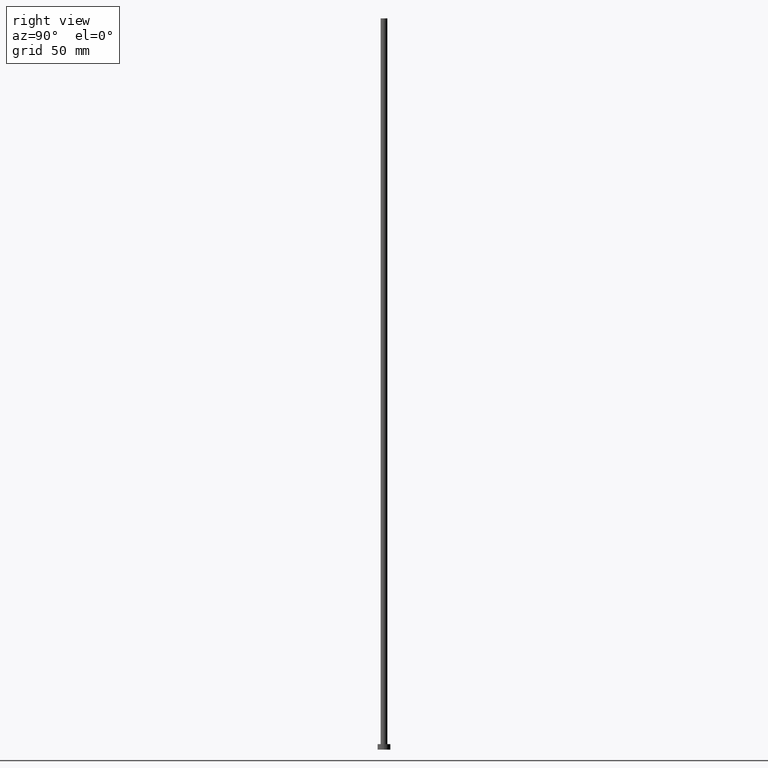
[diagram: clean part render]
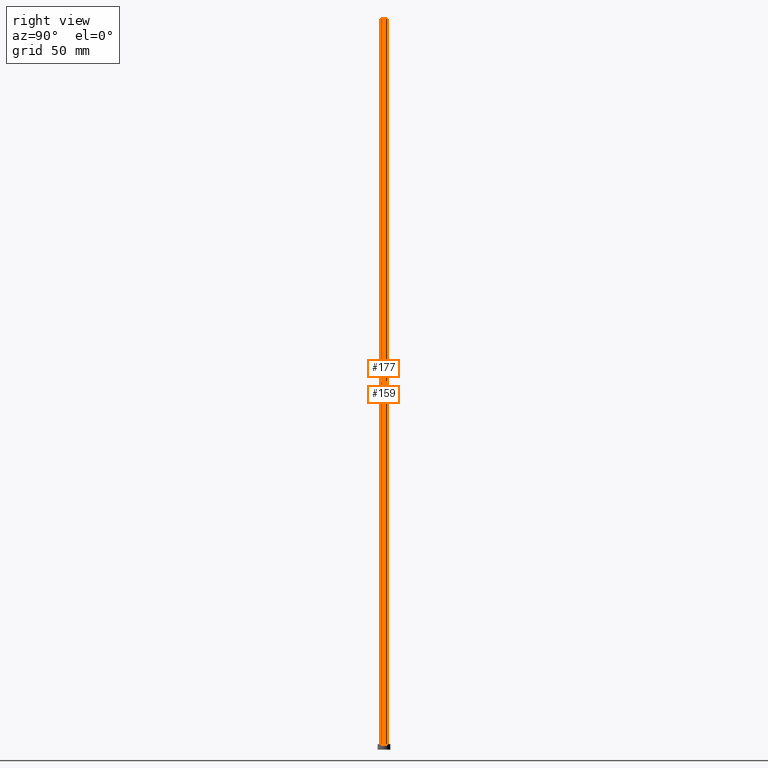
[diagram: same view with one multi-face feature highlighted, each face labeled with its STEP entity id]
A machine part, right view. The highlighted faces form ONE feature: a constant-radius fillet chain: 2 tangent blend faces with common blend radius 1.85 mm. The faces share edges in the B-rep.
Their STEP definitions:
[1] entity #159 (Cylinder):
#12 = DIRECTION ( 'NONE',  ( 1.000000000000000000, 0.000000000000000000, 0.000000000000000000 ) ) ;
#13 = CARTESIAN_POINT ( 'NONE',  ( 1.850000000000000089, 2.265596578422603100E-16, 400.0000000000000000 ) ) ;
#15 = EDGE_CURVE ( 'NONE', #142, #21, #222, .T. ) ;
#21 = VERTEX_POINT ( 'NONE', #137 ) ;
#22 = ORIENTED_EDGE ( 'NONE', *, *, #15, .F. ) ;
#23 = CARTESIAN_POINT ( 'NONE',  ( -1.850000000000000089, 0.000000000000000000, 400.0000000000000000 ) ) ;
#30 = AXIS2_PLACEMENT_3D ( 'NONE', #191, #146, #12 ) ;
#36 = AXIS2_PLACEMENT_3D ( 'NONE', #248, #149, #231 ) ;
#42 = ORIENTED_EDGE ( 'NONE', *, *, #185, .F. ) ;
#52 = CARTESIAN_POINT ( 'NONE',  ( 1.850000000000000089, 2.265596578422603100E-16, 3.000000000000000000 ) ) ;
#67 = LINE ( 'NONE', #93, #143 ) ;
#83 = EDGE_LOOP ( 'NONE', ( #22, #162, #216, #42 ) ) ;
#93 = CARTESIAN_POINT ( 'NONE',  ( 1.850000000000000089, 2.265596578422603100E-16, 400.0000000000000000 ) ) ;
#94 = FACE_OUTER_BOUND ( 'NONE', #83, .T. ) ;
#105 = EDGE_CURVE ( 'NONE', #142, #139, #67, .T. ) ;
#108 = LINE ( 'NONE', #23, #152 ) ;
#116 = EDGE_CURVE ( 'NONE', #139, #123, #179, .T. ) ;
#119 = DIRECTION ( 'NONE',  ( 1.000000000000000000, 0.000000000000000000, 0.000000000000000000 ) ) ;
#123 = VERTEX_POINT ( 'NONE', #247 ) ;
#131 = DIRECTION ( 'NONE',  ( -0.000000000000000000, -0.000000000000000000, -1.000000000000000000 ) ) ;
#137 = CARTESIAN_POINT ( 'NONE',  ( -1.850000000000000089, 0.000000000000000000, 400.0000000000000000 ) ) ;
#139 = VERTEX_POINT ( 'NONE', #52 ) ;
#142 = VERTEX_POINT ( 'NONE', #13 ) ;
#143 = VECTOR ( 'NONE', #131, 1000.000000000000000 ) ;
#145 = DIRECTION ( 'NONE',  ( -0.000000000000000000, -0.000000000000000000, -1.000000000000000000 ) ) ;
#146 = DIRECTION ( 'NONE',  ( 0.000000000000000000, 0.000000000000000000, 1.000000000000000000 ) ) ;
#149 = DIRECTION ( 'NONE',  ( -0.000000000000000000, -0.000000000000000000, -1.000000000000000000 ) ) ;
#152 = VECTOR ( 'NONE', #145, 1000.000000000000000 ) ;
#156 = CARTESIAN_POINT ( 'NONE',  ( 0.000000000000000000, 0.000000000000000000, 400.0000000000000000 ) ) ;
#158 = DIRECTION ( 'NONE',  ( 0.000000000000000000, 0.000000000000000000, 1.000000000000000000 ) ) ;
#159 = ADVANCED_FACE ( 'NONE', ( #94 ), #170, .T. ) ;
#162 = ORIENTED_EDGE ( 'NONE', *, *, #105, .T. ) ;
#170 = CYLINDRICAL_SURFACE ( 'NONE', #36, 1.850000000000000089 ) ;
#179 = CIRCLE ( 'NONE', #30, 1.850000000000000089 ) ;
#185 = EDGE_CURVE ( 'NONE', #21, #123, #108, .T. ) ;
#191 = CARTESIAN_POINT ( 'NONE',  ( 0.000000000000000000, 0.000000000000000000, 3.000000000000000000 ) ) ;
#193 = AXIS2_PLACEMENT_3D ( 'NONE', #156, #158, #119 ) ;
#216 = ORIENTED_EDGE ( 'NONE', *, *, #116, .T. ) ;
#222 = CIRCLE ( 'NONE', #193, 1.850000000000000089 ) ;
#231 = DIRECTION ( 'NONE',  ( -1.000000000000000000, 0.000000000000000000, 0.000000000000000000 ) ) ;
#247 = CARTESIAN_POINT ( 'NONE',  ( -1.850000000000000089, 0.000000000000000000, 3.000000000000000000 ) ) ;
#248 = CARTESIAN_POINT ( 'NONE',  ( 0.000000000000000000, 0.000000000000000000, 400.0000000000000000 ) ) ;
[2] entity #177 (Cylinder):
#3 = EDGE_CURVE ( 'NONE', #21, #142, #39, .T. ) ;
#4 = AXIS2_PLACEMENT_3D ( 'NONE', #46, #187, #225 ) ;
#10 = EDGE_LOOP ( 'NONE', ( #141, #61, #125, #202 ) ) ;
#13 = CARTESIAN_POINT ( 'NONE',  ( 1.850000000000000089, 2.265596578422603100E-16, 400.0000000000000000 ) ) ;
#17 = CIRCLE ( 'NONE', #242, 1.850000000000000089 ) ;
#20 = CARTESIAN_POINT ( 'NONE',  ( 0.000000000000000000, 0.000000000000000000, 400.0000000000000000 ) ) ;
#21 = VERTEX_POINT ( 'NONE', #137 ) ;
#23 = CARTESIAN_POINT ( 'NONE',  ( -1.850000000000000089, 0.000000000000000000, 400.0000000000000000 ) ) ;
#24 = FACE_OUTER_BOUND ( 'NONE', #10, .T. ) ;
#39 = CIRCLE ( 'NONE', #217, 1.850000000000000089 ) ;
#46 = CARTESIAN_POINT ( 'NONE',  ( 0.000000000000000000, 0.000000000000000000, 400.0000000000000000 ) ) ;
#52 = CARTESIAN_POINT ( 'NONE',  ( 1.850000000000000089, 2.265596578422603100E-16, 3.000000000000000000 ) ) ;
#61 = ORIENTED_EDGE ( 'NONE', *, *, #3, .F. ) ;
#65 = CYLINDRICAL_SURFACE ( 'NONE', #4, 1.850000000000000089 ) ;
#67 = LINE ( 'NONE', #93, #143 ) ;
#76 = DIRECTION ( 'NONE',  ( 0.000000000000000000, 0.000000000000000000, 1.000000000000000000 ) ) ;
#77 = DIRECTION ( 'NONE',  ( 1.000000000000000000, 0.000000000000000000, 0.000000000000000000 ) ) ;
#93 = CARTESIAN_POINT ( 'NONE',  ( 1.850000000000000089, 2.265596578422603100E-16, 400.0000000000000000 ) ) ;
#105 = EDGE_CURVE ( 'NONE', #142, #139, #67, .T. ) ;
#108 = LINE ( 'NONE', #23, #152 ) ;
#123 = VERTEX_POINT ( 'NONE', #247 ) ;
#125 = ORIENTED_EDGE ( 'NONE', *, *, #185, .T. ) ;
#131 = DIRECTION ( 'NONE',  ( -0.000000000000000000, -0.000000000000000000, -1.000000000000000000 ) ) ;
#137 = CARTESIAN_POINT ( 'NONE',  ( -1.850000000000000089, 0.000000000000000000, 400.0000000000000000 ) ) ;
#139 = VERTEX_POINT ( 'NONE', #52 ) ;
#141 = ORIENTED_EDGE ( 'NONE', *, *, #105, .F. ) ;
#142 = VERTEX_POINT ( 'NONE', #13 ) ;
#143 = VECTOR ( 'NONE', #131, 1000.000000000000000 ) ;
#144 = CARTESIAN_POINT ( 'NONE',  ( 0.000000000000000000, 0.000000000000000000, 3.000000000000000000 ) ) ;
#145 = DIRECTION ( 'NONE',  ( -0.000000000000000000, -0.000000000000000000, -1.000000000000000000 ) ) ;
#152 = VECTOR ( 'NONE', #145, 1000.000000000000000 ) ;
#166 = DIRECTION ( 'NONE',  ( 1.000000000000000000, 0.000000000000000000, 0.000000000000000000 ) ) ;
#177 = ADVANCED_FACE ( 'NONE', ( #24 ), #65, .T. ) ;
#185 = EDGE_CURVE ( 'NONE', #21, #123, #108, .T. ) ;
#187 = DIRECTION ( 'NONE',  ( -0.000000000000000000, -0.000000000000000000, -1.000000000000000000 ) ) ;
#202 = ORIENTED_EDGE ( 'NONE', *, *, #236, .T. ) ;
#217 = AXIS2_PLACEMENT_3D ( 'NONE', #20, #76, #77 ) ;
#224 = DIRECTION ( 'NONE',  ( 0.000000000000000000, 0.000000000000000000, 1.000000000000000000 ) ) ;
#225 = DIRECTION ( 'NONE',  ( -1.000000000000000000, 0.000000000000000000, 0.000000000000000000 ) ) ;
#236 = EDGE_CURVE ( 'NONE', #123, #139, #17, .T. ) ;
#242 = AXIS2_PLACEMENT_3D ( 'NONE', #144, #224, #166 ) ;
#247 = CARTESIAN_POINT ( 'NONE',  ( -1.850000000000000089, 0.000000000000000000, 3.000000000000000000 ) ) ;